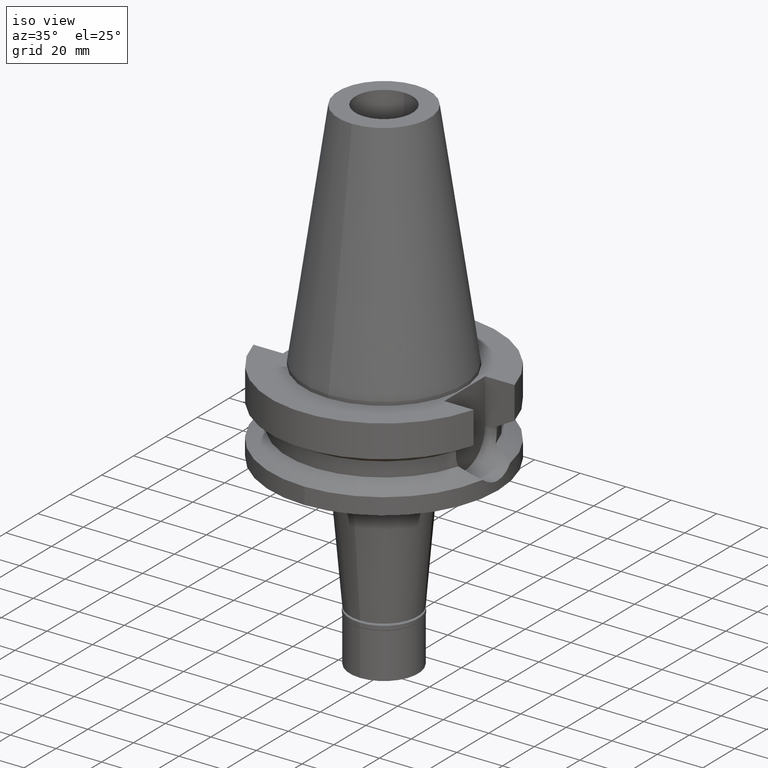
[diagram: clean part render]
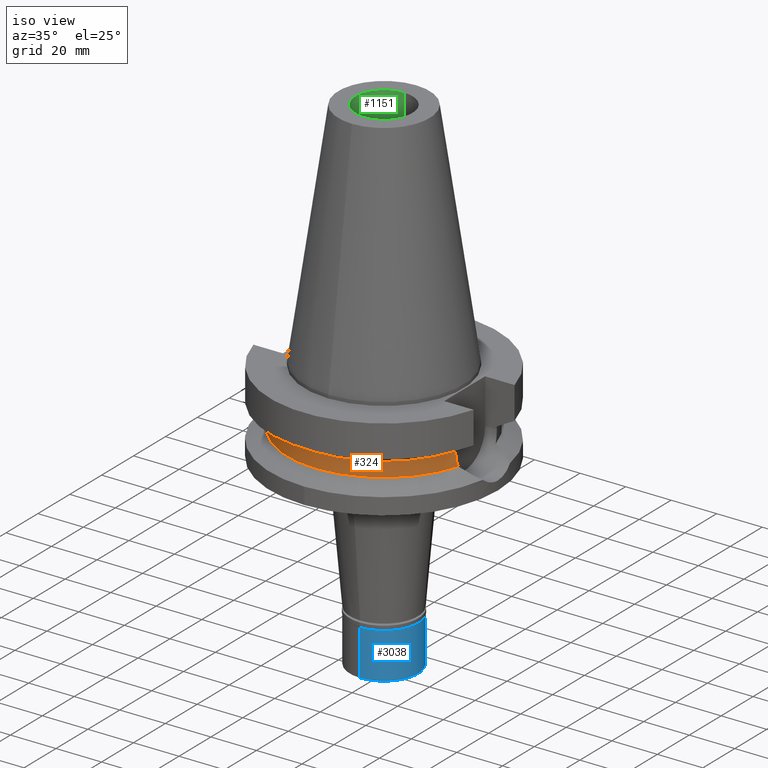
[diagram: same view with three faces highlighted in distinct colors, each labeled with its STEP entity id]
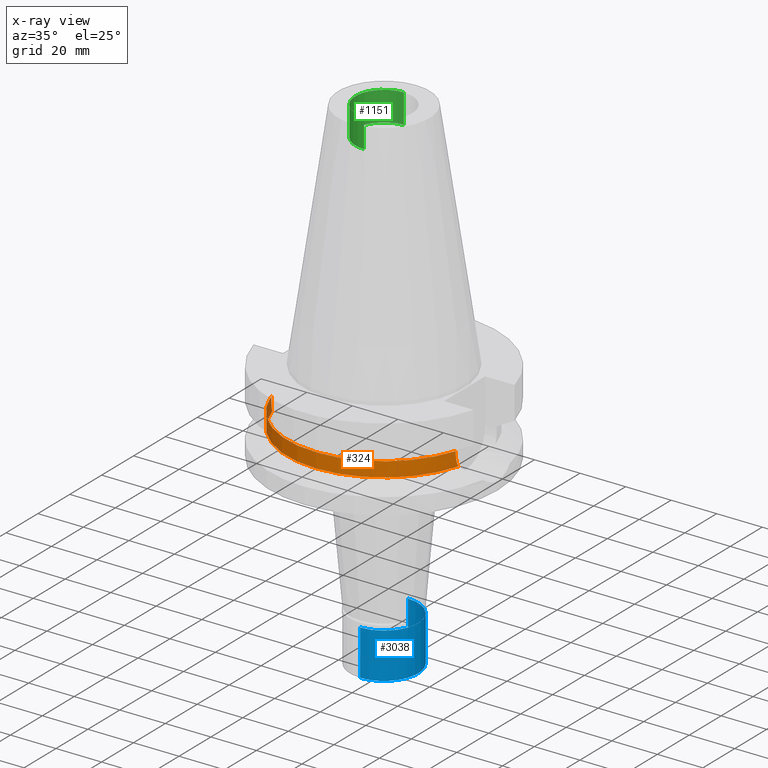
[diagram: x-ray of the same camera — body ghosted, the three highlighted faces saturated]
A machine part, iso view with three faces highlighted in distinct colors.
The next image is the same camera in x-ray (body ghosted, the three faces saturated) — at least one of them is partly hidden behind the body in this view.
Their STEP definitions:

[orange] entity #324 — the highlighted cylindrical surface (partial cylindrical patch) has radius 42.5 mm, axis along (0, 0, -1).
#34 = LINE ( 'NONE', #2961, #1086 ) ;
#51 = CARTESIAN_POINT ( 'NONE',  ( -40.51083188481999997, -12.84999999999999964, -21.14999999999999858 ) ) ;
#59 = AXIS2_PLACEMENT_3D ( 'NONE', #2342, #1123, #1621 ) ;
#146 = CARTESIAN_POINT ( 'NONE',  ( 40.57496101843507574, -12.64633755876298693, -23.43369807928904081 ) ) ;
#188 = VERTEX_POINT ( 'NONE', #660 ) ;
#235 = CARTESIAN_POINT ( 'NONE',  ( -40.85052569294000335, -11.72538061688000077, -26.40718074535000426 ) ) ;
#265 = DIRECTION ( 'NONE',  ( 0.0000000000000000000, 0.0000000000000000000, -1.000000000000000000 ) ) ;
#323 = EDGE_CURVE ( 'NONE', #3061, #1842, #2116, .T. ) ;
#324 = ADVANCED_FACE ( 'NONE', ( #3072 ), #627, .T. ) ;
#375 = LINE ( 'NONE', #902, #1795 ) ;
#522 = EDGE_CURVE ( 'NONE', #538, #188, #1537, .T. ) ;
#538 = VERTEX_POINT ( 'NONE', #1690 ) ;
#595 = CARTESIAN_POINT ( 'NONE',  ( -40.85052569294000335, -11.72538061688000077, -26.40718074535000426 ) ) ;
#627 = CYLINDRICAL_SURFACE ( 'NONE', #59, 42.50000000000000000 ) ;
#646 = CARTESIAN_POINT ( 'NONE',  ( -40.51083188481999997, -12.84999999999999964, -21.14999999999999858 ) ) ;
#649 = CARTESIAN_POINT ( 'NONE',  ( 40.65435955981745764, -12.39001970624487292, -24.66361747048510011 ) ) ;
#660 = CARTESIAN_POINT ( 'NONE',  ( -40.51083297734000155, -12.84999655572999977, -19.99284568705999732 ) ) ;
#664 = CARTESIAN_POINT ( 'NONE',  ( 40.54944727710435615, -12.72806419699665526, -22.93049076237651107 ) ) ;
#672 = AXIS2_PLACEMENT_3D ( 'NONE', #1912, #1628, #1375 ) ;
#702 = EDGE_CURVE ( 'NONE', #3061, #762, #2989, .T. ) ;
#734 = ORIENTED_EDGE ( 'NONE', *, *, #1827, .F. ) ;
#762 = VERTEX_POINT ( 'NONE', #876 ) ;
#824 = ORIENTED_EDGE ( 'NONE', *, *, #323, .F. ) ;
#834 = CARTESIAN_POINT ( 'NONE',  ( -40.79434743164174648, -11.92110232362476019, -25.97065181136010992 ) ) ;
#851 = CARTESIAN_POINT ( 'NONE',  ( -40.60257095199571609, -12.55731571366193577, -23.87709474182198122 ) ) ;
#866 = CARTESIAN_POINT ( 'NONE',  ( -40.66327695313978552, -12.35977177933932225, -24.67238797837626052 ) ) ;
#876 = CARTESIAN_POINT ( 'NONE',  ( 40.85052569294000335, -11.72538061688000077, -26.40718074535000426 ) ) ;
#887 = CARTESIAN_POINT ( 'NONE',  ( 40.58662608485430923, -12.60878154790535000, -23.62927549513685221 ) ) ;
#902 = CARTESIAN_POINT ( 'NONE',  ( -40.51083188481999997, -12.84999999999999964, -21.14999999999999858 ) ) ;
#914 = CARTESIAN_POINT ( 'NONE',  ( 40.59544671389546977, -12.58032818125506580, -23.76890350620163517 ) ) ;
#953 = DIRECTION ( 'NONE',  ( 0.9531960443486575674, -0.3023529411764863672, 0.0000000000000000000 ) ) ;
#1086 = VECTOR ( 'NONE', #1744, 1000.000000000000114 ) ;
#1123 = DIRECTION ( 'NONE',  ( 0.0000000000000000000, 0.0000000000000000000, -1.000000000000000000 ) ) ;
#1164 = EDGE_CURVE ( 'NONE', #1842, #188, #375, .T. ) ;
#1170 = CARTESIAN_POINT ( 'NONE',  ( 40.73816957792652005, -12.11682261037108965, -25.53412604446967649 ) ) ;
#1375 = DIRECTION ( 'NONE',  ( 0.0000000000000000000, -1.000000000000000000, 0.0000000000000000000 ) ) ;
#1399 = CARTESIAN_POINT ( 'NONE',  ( 40.51818719763606680, -12.82722225432308960, -22.03686830847411215 ) ) ;
#1409 = ORIENTED_EDGE ( 'NONE', *, *, #702, .T. ) ;
#1481 = CARTESIAN_POINT ( 'NONE',  ( 0.0000000000000000000, 1.006319759053999930E-14, -19.99281925464999787 ) ) ;
#1537 = CIRCLE ( 'NONE', #1944, 42.50000000000002132 ) ;
#1603 = CARTESIAN_POINT ( 'NONE',  ( -40.63719938804874943, -12.44499676301189162, -24.35261212848416079 ) ) ;
#1621 = DIRECTION ( 'NONE',  ( 0.0000000000000000000, -1.000000000000000000, 0.0000000000000000000 ) ) ;
#1628 = DIRECTION ( 'NONE',  ( 0.0000000000000000000, 0.0000000000000000000, 1.000000000000000000 ) ) ;
#1690 = CARTESIAN_POINT ( 'NONE',  ( 40.51083188481999997, -12.84999999999999964, -19.99281925464999787 ) ) ;
#1744 = DIRECTION ( 'NONE',  ( -9.455767660901086311E-07, -2.981022116272028966E-06, -0.9999999999951096896 ) ) ;
#1795 = VECTOR ( 'NONE', #2861, 1000.000000000000114 ) ;
#1812 = CARTESIAN_POINT ( 'NONE',  ( -40.74530522851353709, -12.08734613714425876, -25.53455770065779618 ) ) ;
#1827 = EDGE_CURVE ( 'NONE', #538, #2029, #34, .T. ) ;
#1838 = CARTESIAN_POINT ( 'NONE',  ( 40.51083188481999997, -12.84999999999999964, -21.14999999999999858 ) ) ;
#1840 = CARTESIAN_POINT ( 'NONE',  ( -40.54025086427707691, -12.75862911298345992, -22.93149008171479508 ) ) ;
#1842 = VERTEX_POINT ( 'NONE', #51 ) ;
#1843 = CARTESIAN_POINT ( 'NONE',  ( 40.85052569294000335, -11.72538061688000077, -26.40718074535000426 ) ) ;
#1864 = CARTESIAN_POINT ( 'NONE',  ( 40.59736864107516396, -12.57412283048223856, -23.79851909554432865 ) ) ;
#1912 = CARTESIAN_POINT ( 'NONE',  ( 0.0000000000000000000, 0.0000000000000000000, -26.40718074535000426 ) ) ;
#1944 = AXIS2_PLACEMENT_3D ( 'NONE', #1481, #265, #953 ) ;
#2019 = ORIENTED_EDGE ( 'NONE', *, *, #522, .T. ) ;
#2029 = VERTEX_POINT ( 'NONE', #1838 ) ;
#2116 = B_SPLINE_CURVE_WITH_KNOTS ( 'NONE', 3,
 ( #595, #834, #1812, #2305, #866, #1603, #2854, #2805, #3059, #851, #2573, #1840, #2324, #646 ),
 .UNSPECIFIED., .F., .F.,
 ( 4, 2, 2, 1, 1, 2, 2, 4 ),
 ( 0.0000000000000000000, 0.2499999999999908407, 0.3749999999999861222, 0.4374999999999826250, 0.4687499999999819034, 0.4843749999999814593, 0.4999999999999810707, 1.000000000000000000 ),
 .UNSPECIFIED. ) ;
#2134 = CARTESIAN_POINT ( 'NONE',  ( 40.59188398425018818, -12.59182459259147002, -23.71305796896682594 ) ) ;
#2305 = CARTESIAN_POINT ( 'NONE',  ( -40.68244601107633684, -12.29666625011165415, -24.88710380518764254 ) ) ;
#2324 = CARTESIAN_POINT ( 'NONE',  ( -40.51083188482000708, -12.84999999999998543, -22.03308001794205140 ) ) ;
#2342 = CARTESIAN_POINT ( 'NONE',  ( 0.0000000000000000000, 2.603048003927999965E-14, 112.5550000000000068 ) ) ;
#2345 = CARTESIAN_POINT ( 'NONE',  ( 40.51083188481999997, -12.84999999999999609, -21.59154171183184800 ) ) ;
#2531 = ORIENTED_EDGE ( 'NONE', *, *, #2652, .F. ) ;
#2573 = CARTESIAN_POINT ( 'NONE',  ( -40.60092750940732031, -12.56262654778352506, -23.85254111937892674 ) ) ;
#2624 = CARTESIAN_POINT ( 'NONE',  ( 40.56599673094050473, -12.67509433839779120, -23.26596311455569932 ) ) ;
#2652 = EDGE_CURVE ( 'NONE', #2029, #762, #3135, .T. ) ;
#2698 = ORIENTED_EDGE ( 'NONE', *, *, #1164, .F. ) ;
#2805 = CARTESIAN_POINT ( 'NONE',  ( -40.61156896389279325, -12.52821669071489552, -24.00856318994577876 ) ) ;
#2854 = CARTESIAN_POINT ( 'NONE',  ( -40.62482961095668088, -12.48525133053583147, -24.19329755006814153 ) ) ;
#2861 = DIRECTION ( 'NONE',  ( -9.441434336650235614E-07, 2.976503382595077059E-06, 0.9999999999951245666 ) ) ;
#2874 = CARTESIAN_POINT ( 'NONE',  ( 40.51083188481999997, -12.84999999999999964, -21.14999999999999858 ) ) ;
#2961 = CARTESIAN_POINT ( 'NONE',  ( 40.51083297899999991, -12.84999655049999845, -19.99284572718999797 ) ) ;
#2989 = CIRCLE ( 'NONE', #672, 42.50000000000000000 ) ;
#3059 = CARTESIAN_POINT ( 'NONE',  ( -40.60613670648186968, -12.54578755583301231, -23.92964714799551729 ) ) ;
#3061 = VERTEX_POINT ( 'NONE', #235 ) ;
#3072 = FACE_OUTER_BOUND ( 'NONE', #3075, .T. ) ;
#3075 = EDGE_LOOP ( 'NONE', ( #824, #1409, #2531, #734, #2019, #2698 ) ) ;
#3091 = CARTESIAN_POINT ( 'NONE',  ( 40.54025313608426018, -12.75731810731625337, -22.70684014861359756 ) ) ;
#3135 = B_SPLINE_CURVE_WITH_KNOTS ( 'NONE', 3,
 ( #2874, #2345, #1399, #3091, #664, #2624, #146, #887, #2134, #914, #1864, #649, #1170, #1843 ),
 .UNSPECIFIED., .F., .F.,
 ( 4, 2, 2, 1, 1, 2, 2, 4 ),
 ( 0.0000000000000000000, 0.2499999999999892308, 0.3749999999999846789, 0.4374999999999822919, 0.4687499999999819589, 0.4843749999999820144, 0.4999999999999820144, 1.000000000000000000 ),
 .UNSPECIFIED. ) ;

[blue] entity #3038 — the highlighted cylindrical surface (partial cylindrical patch) has radius 15 mm, axis along (0, 0, -1).
#41 = ORIENTED_EDGE ( 'NONE', *, *, #1713, .F. ) ;
#173 = CARTESIAN_POINT ( 'NONE',  ( 0.0000000000000000000, 0.0000000000000000000, 0.0000000000000000000 ) ) ;
#187 = CARTESIAN_POINT ( 'NONE',  ( 0.0000000000000000000, -15.00000000000000000, -22.00000000000000000 ) ) ;
#211 = VERTEX_POINT ( 'NONE', #2592 ) ;
#340 = ORIENTED_EDGE ( 'NONE', *, *, #2682, .T. ) ;
#373 = DIRECTION ( 'NONE',  ( 0.0000000000000000000, 0.0000000000000000000, -1.000000000000000000 ) ) ;
#432 = DIRECTION ( 'NONE',  ( 0.0000000000000000000, 0.0000000000000000000, -1.000000000000000000 ) ) ;
#487 = VERTEX_POINT ( 'NONE', #1520 ) ;
#594 = DIRECTION ( 'NONE',  ( 0.0000000000000000000, 0.0000000000000000000, -1.000000000000000000 ) ) ;
#709 = CARTESIAN_POINT ( 'NONE',  ( 0.0000000000000000000, 15.00000000000000000, -2.000000000000000000 ) ) ;
#832 = VECTOR ( 'NONE', #594, 1000.000000000000000 ) ;
#940 = DIRECTION ( 'NONE',  ( 0.0000000000000000000, 0.0000000000000000000, -1.000000000000000000 ) ) ;
#1085 = LINE ( 'NONE', #1137, #832 ) ;
#1108 = EDGE_CURVE ( 'NONE', #2949, #2564, #1437, .T. ) ;
#1137 = CARTESIAN_POINT ( 'NONE',  ( 0.0000000000000000000, -15.00000000000000000, -2.000000000000000000 ) ) ;
#1157 = DIRECTION ( 'NONE',  ( 0.0000000000000000000, -1.000000000000000000, 0.0000000000000000000 ) ) ;
#1339 = AXIS2_PLACEMENT_3D ( 'NONE', #2281, #2311, #2777 ) ;
#1349 = CYLINDRICAL_SURFACE ( 'NONE', #2797, 15.00000000000000000 ) ;
#1437 = CIRCLE ( 'NONE', #1339, 15.00000000000000000 ) ;
#1447 = CIRCLE ( 'NONE', #2423, 15.00000000000000000 ) ;
#1520 = CARTESIAN_POINT ( 'NONE',  ( 0.0000000000000000000, -15.00000000000000000, -2.000000000000000000 ) ) ;
#1584 = FACE_OUTER_BOUND ( 'NONE', #2037, .T. ) ;
#1624 = DIRECTION ( 'NONE',  ( 0.0000000000000000000, 1.000000000000000000, 0.0000000000000000000 ) ) ;
#1637 = CARTESIAN_POINT ( 'NONE',  ( 0.0000000000000000000, 15.00000000000000000, -22.00000000000000000 ) ) ;
#1713 = EDGE_CURVE ( 'NONE', #211, #2564, #2174, .T. ) ;
#1769 = ORIENTED_EDGE ( 'NONE', *, *, #1979, .T. ) ;
#1974 = ORIENTED_EDGE ( 'NONE', *, *, #1108, .T. ) ;
#1979 = EDGE_CURVE ( 'NONE', #487, #2949, #1085, .T. ) ;
#2037 = EDGE_LOOP ( 'NONE', ( #340, #1769, #1974, #41 ) ) ;
#2174 = LINE ( 'NONE', #709, #2371 ) ;
#2281 = CARTESIAN_POINT ( 'NONE',  ( 0.0000000000000000000, 0.0000000000000000000, -22.00000000000000000 ) ) ;
#2311 = DIRECTION ( 'NONE',  ( 0.0000000000000000000, 0.0000000000000000000, 1.000000000000000000 ) ) ;
#2371 = VECTOR ( 'NONE', #940, 1000.000000000000000 ) ;
#2423 = AXIS2_PLACEMENT_3D ( 'NONE', #2577, #373, #1624 ) ;
#2564 = VERTEX_POINT ( 'NONE', #1637 ) ;
#2577 = CARTESIAN_POINT ( 'NONE',  ( 0.0000000000000000000, 0.0000000000000000000, -2.000000000000000000 ) ) ;
#2592 = CARTESIAN_POINT ( 'NONE',  ( 0.0000000000000000000, 15.00000000000000000, -2.000000000000000000 ) ) ;
#2682 = EDGE_CURVE ( 'NONE', #211, #487, #1447, .T. ) ;
#2777 = DIRECTION ( 'NONE',  ( 0.0000000000000000000, -1.000000000000000000, 0.0000000000000000000 ) ) ;
#2797 = AXIS2_PLACEMENT_3D ( 'NONE', #173, #432, #1157 ) ;
#2949 = VERTEX_POINT ( 'NONE', #187 ) ;
#3038 = ADVANCED_FACE ( 'NONE', ( #1584 ), #1349, .T. ) ;

[green] entity #1151 — the highlighted cylindrical surface (edge-blend (fillet) strip) has radius 12.5 mm, axis along (0, 0, -1).
#97 = CARTESIAN_POINT ( 'NONE',  ( 0.0000000000000000000, 2.603048003927999965E-14, 112.5550000000000068 ) ) ;
#243 = CARTESIAN_POINT ( 'NONE',  ( 0.0000000000000000000, 12.50000000000000000, 88.79999999999999716 ) ) ;
#252 = DIRECTION ( 'NONE',  ( 0.0000000000000000000, 0.0000000000000000000, -1.000000000000000000 ) ) ;
#440 = EDGE_CURVE ( 'NONE', #1774, #3066, #719, .T. ) ;
#525 = VECTOR ( 'NONE', #1469, 1000.000000000000000 ) ;
#697 = ORIENTED_EDGE ( 'NONE', *, *, #440, .F. ) ;
#719 = LINE ( 'NONE', #2752, #2521 ) ;
#768 = DIRECTION ( 'NONE',  ( 0.0000000000000000000, 0.0000000000000000000, 1.000000000000000000 ) ) ;
#895 = EDGE_CURVE ( 'NONE', #1549, #3066, #2153, .T. ) ;
#900 = ORIENTED_EDGE ( 'NONE', *, *, #895, .T. ) ;
#954 = CARTESIAN_POINT ( 'NONE',  ( 0.0000000000000000000, 12.50000000000000000, 101.7999999999999972 ) ) ;
#976 = ORIENTED_EDGE ( 'NONE', *, *, #1266, .T. ) ;
#1082 = AXIS2_PLACEMENT_3D ( 'NONE', #1222, #2414, #1209 ) ;
#1114 = DIRECTION ( 'NONE',  ( 0.0000000000000000000, 0.0000000000000000000, -1.000000000000000000 ) ) ;
#1151 = ADVANCED_FACE ( 'NONE', ( #3031 ), #1321, .F. ) ;
#1209 = DIRECTION ( 'NONE',  ( 0.0000000000000000000, 1.000000000000000000, 0.0000000000000000000 ) ) ;
#1222 = CARTESIAN_POINT ( 'NONE',  ( 0.0000000000000000000, 2.603048003927999965E-14, 101.7999999999999972 ) ) ;
#1266 = EDGE_CURVE ( 'NONE', #1774, #2222, #1488, .T. ) ;
#1273 = ORIENTED_EDGE ( 'NONE', *, *, #1553, .T. ) ;
#1277 = CARTESIAN_POINT ( 'NONE',  ( 0.0000000000000000000, -12.50000000000000000, 88.79999999999999716 ) ) ;
#1321 = CYLINDRICAL_SURFACE ( 'NONE', #2936, 12.50000000000000000 ) ;
#1442 = DIRECTION ( 'NONE',  ( 0.0000000000000000000, -1.000000000000000000, 0.0000000000000000000 ) ) ;
#1469 = DIRECTION ( 'NONE',  ( 0.0000000000000000000, 0.0000000000000000000, 1.000000000000000000 ) ) ;
#1488 = CIRCLE ( 'NONE', #2842, 12.50000000000000000 ) ;
#1549 = VERTEX_POINT ( 'NONE', #954 ) ;
#1553 = EDGE_CURVE ( 'NONE', #2222, #1549, #2702, .T. ) ;
#1774 = VERTEX_POINT ( 'NONE', #1277 ) ;
#1966 = CARTESIAN_POINT ( 'NONE',  ( 0.0000000000000000000, -12.50000000000000000, 101.7999999999999972 ) ) ;
#2153 = CIRCLE ( 'NONE', #1082, 12.50000000000000000 ) ;
#2222 = VERTEX_POINT ( 'NONE', #243 ) ;
#2414 = DIRECTION ( 'NONE',  ( 0.0000000000000000000, 0.0000000000000000000, 1.000000000000000000 ) ) ;
#2521 = VECTOR ( 'NONE', #768, 1000.000000000000000 ) ;
#2638 = CARTESIAN_POINT ( 'NONE',  ( 0.0000000000000000000, 12.50000000000000000, 88.79999999999999716 ) ) ;
#2702 = LINE ( 'NONE', #2638, #525 ) ;
#2752 = CARTESIAN_POINT ( 'NONE',  ( 0.0000000000000000000, -12.50000000000000000, 88.79999999999999716 ) ) ;
#2842 = AXIS2_PLACEMENT_3D ( 'NONE', #3134, #252, #1442 ) ;
#2936 = AXIS2_PLACEMENT_3D ( 'NONE', #97, #1114, #3078 ) ;
#3012 = EDGE_LOOP ( 'NONE', ( #900, #697, #976, #1273 ) ) ;
#3031 = FACE_OUTER_BOUND ( 'NONE', #3012, .T. ) ;
#3066 = VERTEX_POINT ( 'NONE', #1966 ) ;
#3078 = DIRECTION ( 'NONE',  ( 0.0000000000000000000, -1.000000000000000000, 0.0000000000000000000 ) ) ;
#3134 = CARTESIAN_POINT ( 'NONE',  ( 0.0000000000000000000, 2.603048003927999965E-14, 88.79999999999999716 ) ) ;